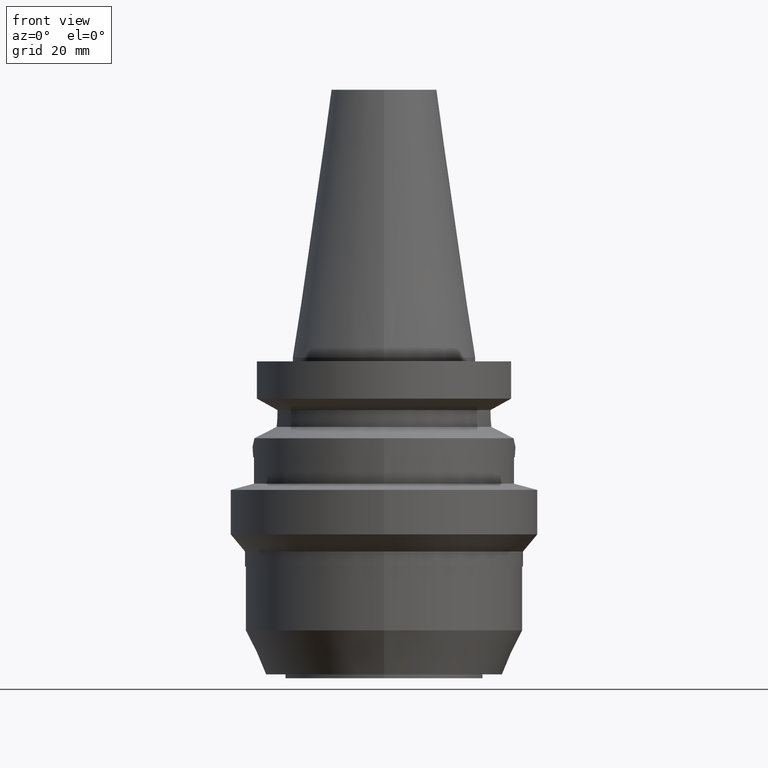
[diagram: clean part render]
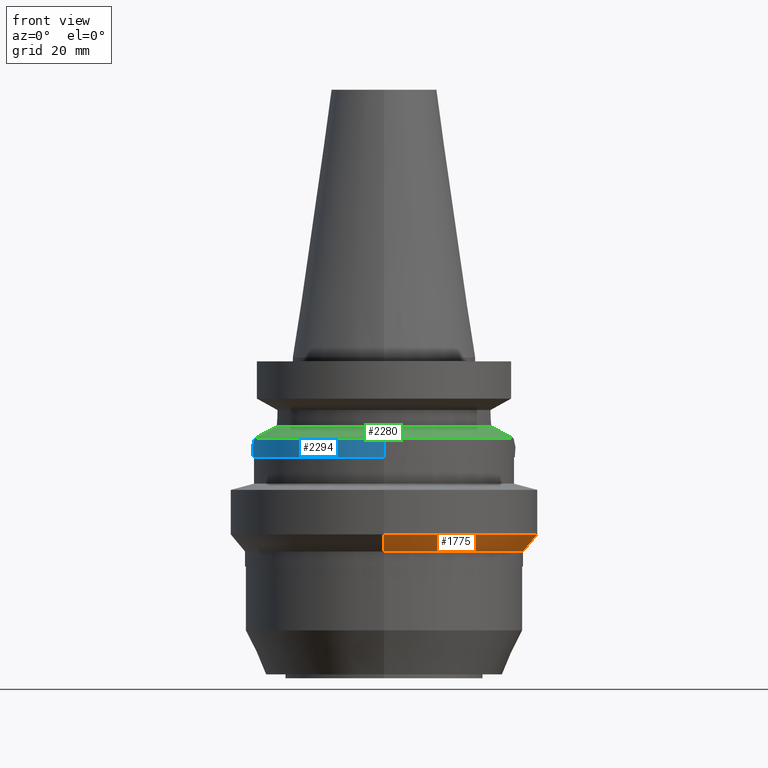
[diagram: same view with three faces highlighted in distinct colors, each labeled with its STEP entity id]
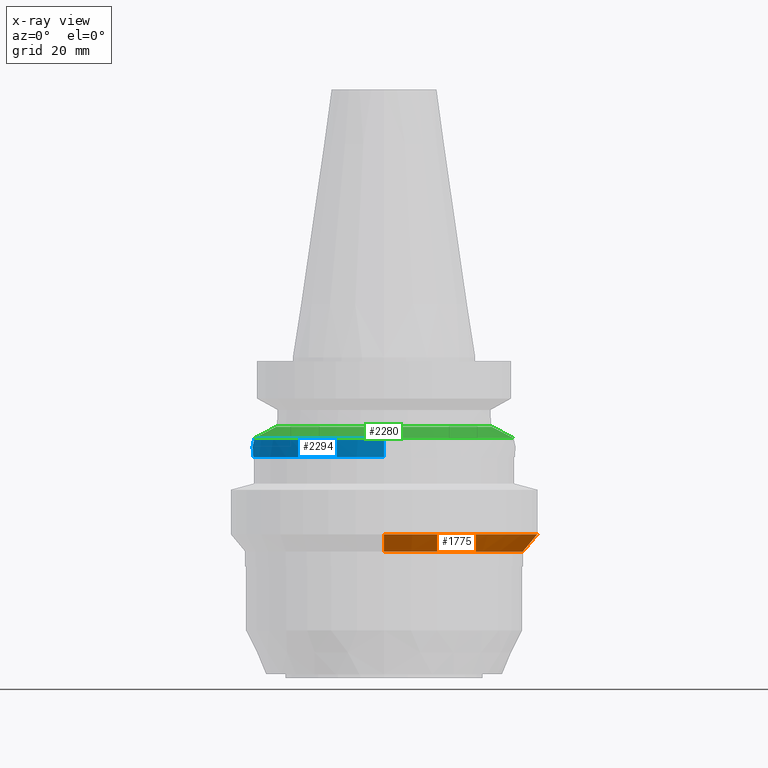
[diagram: x-ray of the same camera — body ghosted, the three highlighted faces saturated]
A machine part, front view with three faces highlighted in distinct colors.
The next image is the same camera in x-ray (body ghosted, the three faces saturated) — at least one of them is partly hidden behind the body in this view.
Their STEP definitions:

[orange] entity #1775 — the highlighted conical surface has half-angle 41.093 deg.
#422=DIRECTION('',(0.E0,6.572831757520E-1,-7.536437002148E-1));
#423=VECTOR('',#422,8.595990599541E0);
#424=CARTESIAN_POINT('',(0.E0,-5.85E1,-6.73E1));
#425=LINE('',#424,#423);
#437=DIRECTION('',(0.E0,-6.572831757520E-1,-7.536437002148E-1));
#438=VECTOR('',#437,8.595990599541E0);
#439=CARTESIAN_POINT('',(0.E0,5.85E1,-6.73E1));
#440=LINE('',#439,#438);
#444=CARTESIAN_POINT('',(0.E0,0.E0,-7.377831416245E1));
#445=DIRECTION('',(0.E0,0.E0,-1.E0));
#446=DIRECTION('',(0.E0,1.E0,0.E0));
#447=AXIS2_PLACEMENT_3D('',#444,#445,#446);
#452=CARTESIAN_POINT('',(0.E0,0.E0,-6.73E1));
#453=DIRECTION('',(0.E0,0.E0,1.E0));
#454=DIRECTION('',(0.E0,-1.E0,0.E0));
#455=AXIS2_PLACEMENT_3D('',#452,#453,#454);
#1242=CARTESIAN_POINT('',(0.E0,5.285E1,-7.377831416245E1));
#1243=VERTEX_POINT('',#1242);
#1244=CARTESIAN_POINT('',(0.E0,-5.285E1,-7.377831416245E1));
#1245=VERTEX_POINT('',#1244);
#1246=CARTESIAN_POINT('',(0.E0,5.85E1,-6.73E1));
#1247=VERTEX_POINT('',#1246);
#1248=CARTESIAN_POINT('',(0.E0,-5.85E1,-6.73E1));
#1249=VERTEX_POINT('',#1248);
#1763=CARTESIAN_POINT('',(0.E0,0.E0,-7.053915708122E1));
#1764=DIRECTION('',(0.E0,0.E0,1.E0));
#1765=DIRECTION('',(0.E0,1.E0,0.E0));
#1766=AXIS2_PLACEMENT_3D('',#1763,#1764,#1765);
#1767=CONICAL_SURFACE('',#1766,5.5675E1,4.1093E1);
#1768=ORIENTED_EDGE('',*,*,#1753,.T.);
#1769=ORIENTED_EDGE('',*,*,#1730,.T.);
#1770=ORIENTED_EDGE('',*,*,#1757,.F.);
#1772=ORIENTED_EDGE('',*,*,#1771,.T.);
#1773=EDGE_LOOP('',(#1768,#1769,#1770,#1772));
#1774=FACE_OUTER_BOUND('',#1773,.F.);
#448=CIRCLE('',#447,5.285E1);
#456=CIRCLE('',#455,5.85E1);
#1730=EDGE_CURVE('',#1243,#1245,#448,.T.);
#1753=EDGE_CURVE('',#1247,#1243,#440,.T.);
#1757=EDGE_CURVE('',#1249,#1245,#425,.T.);
#1771=EDGE_CURVE('',#1249,#1247,#456,.T.);
#1775=ADVANCED_FACE('',(#1774),#1767,.T.);

[blue] entity #2294 — the highlighted cylindrical surface (partial cylindrical patch) has radius 50 mm, axis along (0, 0, -1).
#542=CARTESIAN_POINT('',(0.E0,1.383728418357E-14,-3.8E1));
#543=DIRECTION('',(0.E0,0.E0,1.E0));
#544=DIRECTION('',(0.E0,1.E0,0.E0));
#545=AXIS2_PLACEMENT_3D('',#542,#543,#544);
#588=DIRECTION('',(0.E0,2.250196262219E-14,-1.E0));
#589=VECTOR('',#588,7.262692235730E0);
#590=CARTESIAN_POINT('',(0.E0,5.E1,-3.073730776427E1));
#591=LINE('',#590,#589);
#614=CARTESIAN_POINT('',(-4.926250064874E1,8.556052234130E0,-3.073730776427E1));
#619=CARTESIAN_POINT('',(0.E0,0.E0,-3.073730776427E1));
#620=DIRECTION('',(0.E0,0.E0,-1.E0));
#621=DIRECTION('',(-9.852500129747E-1,1.711210446826E-1,0.E0));
#622=AXIS2_PLACEMENT_3D('',#619,#620,#621);
#1101=CARTESIAN_POINT('',(-4.926250064874E1,-8.556052234130E0,
-3.073730776427E1));
#1145=CARTESIAN_POINT('',(0.E0,0.E0,-3.073730776427E1));
#1146=DIRECTION('',(0.E0,0.E0,-1.E0));
#1147=DIRECTION('',(0.E0,-1.E0,0.E0));
#1148=AXIS2_PLACEMENT_3D('',#1145,#1146,#1147);
#1153=CARTESIAN_POINT('',(-4.926250064874E1,8.556052234130E0,
-3.073730776427E1));
#1154=CARTESIAN_POINT('',(-4.938257041523E1,7.864736100490E0,
-3.135426271087E1));
#1155=CARTESIAN_POINT('',(-4.960816148579E1,6.393814891551E0,
-3.240295242283E1));
#1156=CARTESIAN_POINT('',(-4.986663224373E1,3.938303146019E0,
-3.347879476661E1));
#1157=CARTESIAN_POINT('',(-5.000665670733E1,1.312464764308E0,
-3.402614511620E1));
#1158=CARTESIAN_POINT('',(-5.000491530242E1,-1.372472453292E0,
-3.401947062196E1));
#1159=CARTESIAN_POINT('',(-4.986261805564E1,-3.985055039842E0,
-3.346269100386E1));
#1160=CARTESIAN_POINT('',(-4.960440898289E1,-6.419945518532E0,
-3.238623545019E1));
#1161=CARTESIAN_POINT('',(-4.938106348839E1,-7.873412413145E0,
-3.134651966286E1));
#1162=CARTESIAN_POINT('',(-4.926250064874E1,-8.556052234130E0,
-3.073730776427E1));
#1167=DIRECTION('',(0.E0,-2.152361642122E-14,-1.E0));
#1168=VECTOR('',#1167,7.262692235730E0);
#1169=CARTESIAN_POINT('',(0.E0,-5.E1,-3.073730776427E1));
#1170=LINE('',#1169,#1168);
#1262=CARTESIAN_POINT('',(0.E0,-5.E1,-3.8E1));
#1263=CARTESIAN_POINT('',(0.E0,5.E1,-3.8E1));
#1264=VERTEX_POINT('',#1262);
#1265=VERTEX_POINT('',#1263);
#1269=CARTESIAN_POINT('',(0.E0,5.E1,-3.073730776427E1));
#1270=VERTEX_POINT('',#1269);
#1271=CARTESIAN_POINT('',(0.E0,-5.E1,-3.073730776427E1));
#1272=VERTEX_POINT('',#1271);
#1284=VERTEX_POINT('',#1101);
#1289=VERTEX_POINT('',#614);
#2281=CARTESIAN_POINT('',(0.E0,1.383728418357E-14,1.1299E2));
#2282=DIRECTION('',(0.E0,0.E0,-1.E0));
#2283=DIRECTION('',(0.E0,-1.E0,0.E0));
#2284=AXIS2_PLACEMENT_3D('',#2281,#2282,#2283);
#2285=CYLINDRICAL_SURFACE('',#2284,5.E1);
#2286=ORIENTED_EDGE('',*,*,#1950,.T.);
#2287=ORIENTED_EDGE('',*,*,#2276,.F.);
#2288=ORIENTED_EDGE('',*,*,#1890,.T.);
#2289=ORIENTED_EDGE('',*,*,#1867,.F.);
#2290=ORIENTED_EDGE('',*,*,#1887,.F.);
#2291=ORIENTED_EDGE('',*,*,#1930,.F.);
#2292=EDGE_LOOP('',(#2286,#2287,#2288,#2289,#2290,#2291));
#2293=FACE_OUTER_BOUND('',#2292,.F.);
#546=CIRCLE('',#545,5.E1);
#623=CIRCLE('',#622,5.E1);
#1149=CIRCLE('',#1148,5.E1);
#1163=B_SPLINE_CURVE_WITH_KNOTS('',3,(#1153,#1154,#1155,#1156,#1157,#1158,#1159,
#1160,#1161,#1162),.UNSPECIFIED.,.F.,.F.,(4,1,1,1,1,1,1,4),(0.E0,
1.428571428571E-1,2.857142857143E-1,4.285714285714E-1,5.714285714286E-1,
7.142857142857E-1,8.571428571429E-1,1.E0),.UNSPECIFIED.);
#1867=EDGE_CURVE('',#1265,#1264,#546,.T.);
#1887=EDGE_CURVE('',#1270,#1265,#591,.T.);
#1890=EDGE_CURVE('',#1272,#1264,#1170,.T.);
#1930=EDGE_CURVE('',#1289,#1270,#623,.T.);
#1950=EDGE_CURVE('',#1289,#1284,#1163,.T.);
#2276=EDGE_CURVE('',#1272,#1284,#1149,.T.);
#2294=ADVANCED_FACE('',(#2293),#2285,.T.);

[green] entity #2280 — the highlighted conical surface has half-angle 60 deg.
#566=CARTESIAN_POINT('',(4.926250064874E1,-8.556052234130E0,-3.073730776427E1));
#1101=CARTESIAN_POINT('',(-4.926250064874E1,-8.556052234130E0,
-3.073730776427E1));
#1102=CARTESIAN_POINT('',(-4.853446079975E1,-8.973849513052E0,
-3.036445070892E1));
#1103=CARTESIAN_POINT('',(-4.693945517956E1,-9.781250318963E0,
-2.954682551157E1));
#1104=CARTESIAN_POINT('',(-4.408847198395E1,-1.087313779766E1,
-2.808089074029E1));
#1105=CARTESIAN_POINT('',(-4.196934671623E1,-1.146555855757E1,
-2.698667623649E1));
#1106=CARTESIAN_POINT('',(-4.085052569294E1,-1.172538061688E1,
-2.640718074535E1));
#1111=CARTESIAN_POINT('',(0.E0,0.E0,-2.640718074535E1));
#1112=DIRECTION('',(0.E0,0.E0,1.E0));
#1113=DIRECTION('',(-9.611888398338E-1,-2.758913086325E-1,0.E0));
#1114=AXIS2_PLACEMENT_3D('',#1111,#1112,#1113);
#1119=CARTESIAN_POINT('',(0.E0,0.E0,-2.640718074535E1));
#1120=DIRECTION('',(0.E0,0.E0,1.E0));
#1121=DIRECTION('',(0.E0,-1.E0,0.E0));
#1122=AXIS2_PLACEMENT_3D('',#1119,#1120,#1121);
#1127=CARTESIAN_POINT('',(4.085052569294E1,-1.172538061688E1,
-2.640718074535E1));
#1128=CARTESIAN_POINT('',(4.196772398692E1,-1.146593540147E1,
-2.698583574074E1));
#1129=CARTESIAN_POINT('',(4.408471845339E1,-1.087427648019E1,
-2.807895586455E1));
#1130=CARTESIAN_POINT('',(4.693477561632E1,-9.783343029706E0,
-2.954442286937E1));
#1131=CARTESIAN_POINT('',(4.853253796573E1,-8.974952962019E0,
-3.036346595207E1));
#1132=CARTESIAN_POINT('',(4.926250064874E1,-8.556052234130E0,
-3.073730776427E1));
#1137=CARTESIAN_POINT('',(0.E0,0.E0,-3.073730776427E1));
#1138=DIRECTION('',(0.E0,0.E0,-1.E0));
#1139=DIRECTION('',(9.852500129747E-1,-1.711210446826E-1,0.E0));
#1140=AXIS2_PLACEMENT_3D('',#1137,#1138,#1139);
#1145=CARTESIAN_POINT('',(0.E0,0.E0,-3.073730776427E1));
#1146=DIRECTION('',(0.E0,0.E0,-1.E0));
#1147=DIRECTION('',(0.E0,-1.E0,0.E0));
#1148=AXIS2_PLACEMENT_3D('',#1145,#1146,#1147);
#1268=VERTEX_POINT('',#566);
#1271=CARTESIAN_POINT('',(0.E0,-5.E1,-3.073730776427E1));
#1272=VERTEX_POINT('',#1271);
#1274=VERTEX_POINT('',#1127);
#1284=VERTEX_POINT('',#1101);
#1285=VERTEX_POINT('',#1106);
#1286=CARTESIAN_POINT('',(0.E0,-4.25E1,-2.640718074535E1));
#1287=VERTEX_POINT('',#1286);
#2266=CARTESIAN_POINT('',(0.E0,0.E0,-2.857224425481E1));
#2267=DIRECTION('',(0.E0,0.E0,-1.E0));
#2268=DIRECTION('',(0.E0,-1.E0,0.E0));
#2269=AXIS2_PLACEMENT_3D('',#2266,#2267,#2268);
#2270=CONICAL_SURFACE('',#2269,4.625E1,6.E1);
#2271=ORIENTED_EDGE('',*,*,#1948,.T.);
#2272=ORIENTED_EDGE('',*,*,#1983,.T.);
#2273=ORIENTED_EDGE('',*,*,#1981,.T.);
#2274=ORIENTED_EDGE('',*,*,#1906,.T.);
#2275=ORIENTED_EDGE('',*,*,#1892,.T.);
#2277=ORIENTED_EDGE('',*,*,#2276,.T.);
#2278=EDGE_LOOP('',(#2271,#2272,#2273,#2274,#2275,#2277));
#2279=FACE_OUTER_BOUND('',#2278,.F.);
#1107=B_SPLINE_CURVE_WITH_KNOTS('',3,(#1101,#1102,#1103,#1104,#1105,#1106),
.UNSPECIFIED.,.F.,.F.,(4,1,1,4),(0.E0,3.333333333333E-1,6.666666666667E-1,1.E0),
.UNSPECIFIED.);
#1115=CIRCLE('',#1114,4.25E1);
#1123=CIRCLE('',#1122,4.25E1);
#1133=B_SPLINE_CURVE_WITH_KNOTS('',3,(#1127,#1128,#1129,#1130,#1131,#1132),
.UNSPECIFIED.,.F.,.F.,(4,1,1,4),(0.E0,3.333333333333E-1,6.666666666667E-1,1.E0),
.UNSPECIFIED.);
#1141=CIRCLE('',#1140,5.E1);
#1149=CIRCLE('',#1148,5.E1);
#1892=EDGE_CURVE('',#1268,#1272,#1141,.T.);
#1906=EDGE_CURVE('',#1274,#1268,#1133,.T.);
#1948=EDGE_CURVE('',#1284,#1285,#1107,.T.);
#1981=EDGE_CURVE('',#1287,#1274,#1123,.T.);
#1983=EDGE_CURVE('',#1285,#1287,#1115,.T.);
#2276=EDGE_CURVE('',#1272,#1284,#1149,.T.);
#2280=ADVANCED_FACE('',(#2279),#2270,.T.);